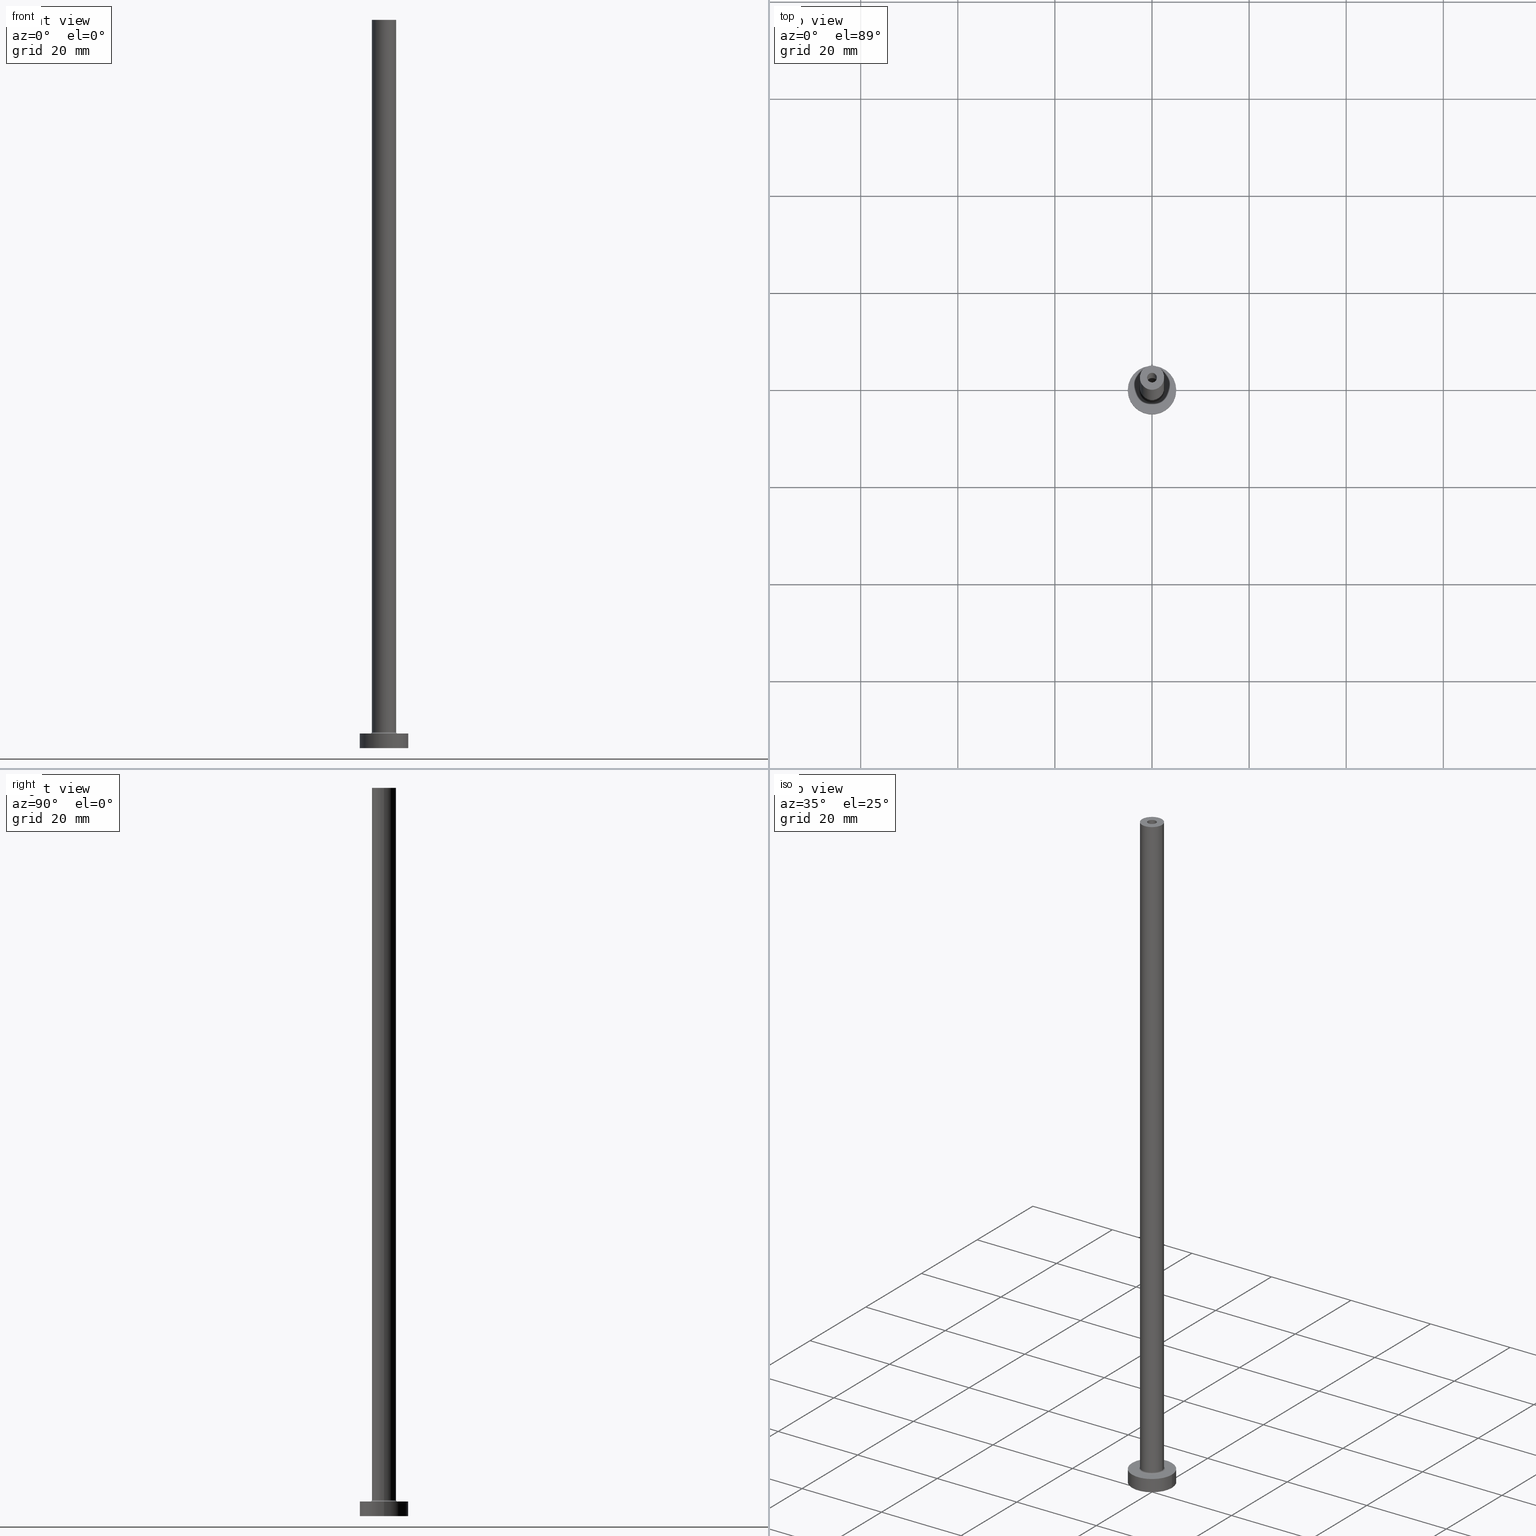
[diagram: canonical four-view strip — front | top / right | iso, engineering-drawing reading convention]
A machine part, canonical four-view strip (front | top / right | iso — engineering-drawing reading convention). The complete STEP part file that produces these views, byte-faithful:
ISO-10303-21;
HEADER;
FILE_DESCRIPTION (( 'STEP AP203' ),
    '1' );
FILE_NAME ('f4f7.STEP',
    '2023-02-13T18:14:59',
    ( '' ),
    ( '' ),
    'SwSTEP 2.0',
    'SolidWorks 2019',
    '' );
FILE_SCHEMA (( 'CONFIG_CONTROL_DESIGN' ));
ENDSEC;

DATA;
#1 = CARTESIAN_POINT ( 'NONE',  ( 1.000000000000000000, 1.224646799147353207E-16, 150.0000000000000000 ) ) ;
#2 = VERTEX_POINT ( 'NONE', #440 ) ;
#3 = DIRECTION ( 'NONE',  ( 0.000000000000000000, -1.000000000000000000, 0.000000000000000000 ) ) ;
#4 = EDGE_LOOP ( 'NONE', ( #427, #264, #370, #221 ) ) ;
#5 = CIRCLE ( 'NONE', #352, 2.799999999999999822 ) ;
#6 = PERSON ( 'NEUR�EN�', 'NEUR�EN�', 'NEUR�EN�', ('NEUR�EN�'), ('NEUR�EN�'), ('NEUR�EN�') ) ;
#7 = FACE_OUTER_BOUND ( 'NONE', #373, .T. ) ;
#8 = DIRECTION ( 'NONE',  ( 0.000000000000000000, 0.000000000000000000, 1.000000000000000000 ) ) ;
#9 = CARTESIAN_POINT ( 'NONE',  ( 2.500000000000000000, 3.061616997868383141E-16, 150.0000000000000000 ) ) ;
#10 = FACE_OUTER_BOUND ( 'NONE', #4, .T. ) ;
#11 = ORIENTED_EDGE ( 'NONE', *, *, #181, .F. ) ;
#12 = VECTOR ( 'NONE', #410, 1000.000000000000000 ) ;
#13 = DIRECTION ( 'NONE',  ( 0.000000000000000000, 0.000000000000000000, 1.000000000000000000 ) ) ;
#14 = VERTEX_POINT ( 'NONE', #436 ) ;
#15 = EDGE_CURVE ( 'NONE', #148, #45, #404, .T. ) ;
#16 = ORIENTED_EDGE ( 'NONE', *, *, #54, .F. ) ;
#17 = CARTESIAN_POINT ( 'NONE',  ( 0.000000000000000000, 0.000000000000000000, 0.000000000000000000 ) ) ;
#18 = LOCAL_TIME ( 19, 14, 59.00000000000000000, #368 ) ;
#19 = DIRECTION ( 'NONE',  ( 1.000000000000000000, 0.000000000000000000, 0.000000000000000000 ) ) ;
#20 = DATE_AND_TIME ( #238, #207 ) ;
#21 = CARTESIAN_POINT ( 'NONE',  ( 0.000000000000000000, 0.000000000000000000, 3.000000000000000000 ) ) ;
#22 = ADVANCED_FACE ( 'NONE', ( #80 ), #41, .F. ) ;
#23 = CARTESIAN_POINT ( 'NONE',  ( 0.000000000000000000, 0.000000000000000000, 3.299999999999997158 ) ) ;
#24 = ADVANCED_FACE ( 'NONE', ( #338 ), #330, .T. ) ;
#25 = ADVANCED_FACE ( 'NONE', ( #7 ), #162, .T. ) ;
#26 = CARTESIAN_POINT ( 'NONE',  ( 5.000000000000000000, 6.123233995736766282E-16, 3.000000000000000000 ) ) ;
#27 = AXIS2_PLACEMENT_3D ( 'NONE', #17, #125, #275 ) ;
#28 = DIRECTION ( 'NONE',  ( 0.000000000000000000, 0.000000000000000000, 1.000000000000000000 ) ) ;
#29 = EDGE_LOOP ( 'NONE', ( #16, #354 ) ) ;
#30 = PRODUCT_DEFINITION_SHAPE ( 'NONE', 'NONE',  #260 ) ;
#31 = CARTESIAN_POINT ( 'NONE',  ( -2.500000000000000000, 0.000000000000000000, 150.0000000000000000 ) ) ;
#32 = ORIENTED_EDGE ( 'NONE', *, *, #278, .F. ) ;
#33 = CARTESIAN_POINT ( 'NONE',  ( 1.000000000000000000, 1.224646799147353207E-16, 150.0000000000000000 ) ) ;
#34 = VECTOR ( 'NONE', #222, 1000.000000000000000 ) ;
#35 = APPLICATION_CONTEXT ( 'configuration controlled 3d designs of mechanical parts and assemblies' ) ;
#36 = CC_DESIGN_PERSON_AND_ORGANIZATION_ASSIGNMENT ( #89, #347, ( #200 ) ) ;
#37 = LINE ( 'NONE', #182, #149 ) ;
#38 = CARTESIAN_POINT ( 'NONE',  ( 0.000000000000000000, 0.000000000000000000, 114.9999999999999858 ) ) ;
#39 = VERTEX_POINT ( 'NONE', #387 ) ;
#40 = EDGE_CURVE ( 'NONE', #49, #2, #445, .T. ) ;
#41 = CYLINDRICAL_SURFACE ( 'NONE', #377, 1.000000000000000000 ) ;
#42 = AXIS2_PLACEMENT_3D ( 'NONE', #134, #281, #419 ) ;
#43 = CLOSED_SHELL ( 'NONE', ( #22, #128, #203, #24, #423, #91, #79, #154, #25, #251, #189, #384, #119, #216 ) ) ;
#44 = CARTESIAN_POINT ( 'NONE',  ( 2.799999999999999822, 0.000000000000000000, 3.299999999999997158 ) ) ;
#45 = VERTEX_POINT ( 'NONE', #206 ) ;
#46 = CARTESIAN_POINT ( 'NONE',  ( 0.000000000000000000, 0.000000000000000000, 150.0000000000000000 ) ) ;
#47 = ORIENTED_EDGE ( 'NONE', *, *, #237, .F. ) ;
#48 = CYLINDRICAL_SURFACE ( 'NONE', #234, 5.000000000000000000 ) ;
#49 = VERTEX_POINT ( 'NONE', #95 ) ;
#50 = CIRCLE ( 'NONE', #315, 0.2999999999999999334 ) ;
#51 = DIRECTION ( 'NONE',  ( -0.000000000000000000, -0.000000000000000000, -1.000000000000000000 ) ) ;
#52 = PLANE ( 'NONE',  #172 ) ;
#53 = APPROVAL_STATUS ( 'not_yet_approved' ) ;
#54 = EDGE_CURVE ( 'NONE', #339, #258, #58, .T. ) ;
#55 = DATE_AND_TIME ( #448, #344 ) ;
#56 = CC_DESIGN_APPROVAL ( #449, ( #200 ) ) ;
#57 = DIRECTION ( 'NONE',  ( 0.000000000000000000, 0.000000000000000000, 1.000000000000000000 ) ) ;
#58 = CIRCLE ( 'NONE', #306, 1.000000000000000000 ) ;
#59 = CC_DESIGN_DATE_AND_TIME_ASSIGNMENT ( #55, #441, ( #260 ) ) ;
#60 = PLANE ( 'NONE',  #139 ) ;
#61 = FACE_OUTER_BOUND ( 'NONE', #291, .T. ) ;
#62 = CC_DESIGN_PERSON_AND_ORGANIZATION_ASSIGNMENT ( #274, #340, ( #200 ) ) ;
#63 = AXIS2_PLACEMENT_3D ( 'NONE', #99, #357, #247 ) ;
#64 = DIRECTION ( 'NONE',  ( 1.000000000000000000, 0.000000000000000000, 0.000000000000000000 ) ) ;
#65 = EDGE_LOOP ( 'NONE', ( #174, #288 ) ) ;
#66 = DIRECTION ( 'NONE',  ( 1.224646799147353207E-16, 1.000000000000000000, -0.000000000000000000 ) ) ;
#67 = ORIENTED_EDGE ( 'NONE', *, *, #235, .F. ) ;
#68 = CARTESIAN_POINT ( 'NONE',  ( -1.000000000000000000, 0.000000000000000000, 150.0000000000000000 ) ) ;
#69 = CARTESIAN_POINT ( 'NONE',  ( 0.000000000000000000, 0.000000000000000000, 150.0000000000000000 ) ) ;
#70 = ORIENTED_EDGE ( 'NONE', *, *, #459, .T. ) ;
#71 = PLANE ( 'NONE',  #194 ) ;
#72 = APPROVAL_STATUS ( 'not_yet_approved' ) ;
#73 = EDGE_LOOP ( 'NONE', ( #47, #228, #121, #358 ) ) ;
#74 = DIRECTION ( 'NONE',  ( 1.000000000000000000, 0.000000000000000000, 0.000000000000000000 ) ) ;
#75 = VERTEX_POINT ( 'NONE', #314 ) ;
#76 = AXIS2_PLACEMENT_3D ( 'NONE', #144, #66, #426 ) ;
#77 = AXIS2_PLACEMENT_3D ( 'NONE', #171, #199, #243 ) ;
#78 =( NAMED_UNIT ( * ) PLANE_ANGLE_UNIT ( ) SI_UNIT ( $, .RADIAN. ) );
#79 = ADVANCED_FACE ( 'NONE', ( #127, #450 ), #52, .T. ) ;
#80 = FACE_OUTER_BOUND ( 'NONE', #422, .T. ) ;
#81 = CARTESIAN_POINT ( 'NONE',  ( 0.000000000000000000, 0.000000000000000000, 0.000000000000000000 ) ) ;
#82 = ORIENTED_EDGE ( 'NONE', *, *, #177, .F. ) ;
#83 = DIRECTION ( 'NONE',  ( 0.000000000000000000, 0.000000000000000000, -1.000000000000000000 ) ) ;
#84 = ORIENTED_EDGE ( 'NONE', *, *, #229, .F. ) ;
#85 = AXIS2_PLACEMENT_3D ( 'NONE', #179, #102, #64 ) ;
#86 = LOCAL_TIME ( 19, 14, 59.00000000000000000, #165 ) ;
#87 = APPROVAL_ROLE ( '' ) ;
#88 = CYLINDRICAL_SURFACE ( 'NONE', #169, 1.149999999999999911 ) ;
#89 = PERSON_AND_ORGANIZATION ( #6, #420 ) ;
#90 = FACE_BOUND ( 'NONE', #256, .T. ) ;
#91 = ADVANCED_FACE ( 'NONE', ( #61 ), #303, .T. ) ;
#92 = CARTESIAN_POINT ( 'NONE',  ( 0.000000000000000000, 0.000000000000000000, 150.0000000000000000 ) ) ;
#93 = APPROVAL_STATUS ( 'not_yet_approved' ) ;
#94 = AXIS2_PLACEMENT_3D ( 'NONE', #110, #372, #403 ) ;
#95 = CARTESIAN_POINT ( 'NONE',  ( -1.000000000000000000, 0.000000000000000000, 114.9999999999999858 ) ) ;
#96 = DIRECTION ( 'NONE',  ( -1.000000000000000000, 0.000000000000000000, 0.000000000000000000 ) ) ;
#97 = CARTESIAN_POINT ( 'NONE',  ( 2.799999999999999822, 0.000000000000000000, 2.999999999999998668 ) ) ;
#98 = AXIS2_PLACEMENT_3D ( 'NONE', #192, #366, #255 ) ;
#99 = CARTESIAN_POINT ( 'NONE',  ( 0.000000000000000000, 0.000000000000000000, 114.9999999999999858 ) ) ;
#100 = CIRCLE ( 'NONE', #323, 2.500000000000000000 ) ;
#101 = EDGE_CURVE ( 'NONE', #148, #180, #100, .T. ) ;
#102 = DIRECTION ( 'NONE',  ( 0.000000000000000000, 0.000000000000000000, 1.000000000000000000 ) ) ;
#103 = APPROVAL ( #93, 'NEUR�EN�' ) ;
#104 = EDGE_LOOP ( 'NONE', ( #145, #442 ) ) ;
#105 = DIRECTION ( 'NONE',  ( -0.000000000000000000, -0.000000000000000000, -1.000000000000000000 ) ) ;
#106 = ORIENTED_EDGE ( 'NONE', *, *, #141, .F. ) ;
#107 = DIRECTION ( 'NONE',  ( -0.000000000000000000, -0.000000000000000000, -1.000000000000000000 ) ) ;
#108 = VERTEX_POINT ( 'NONE', #382 ) ;
#109 = AXIS2_PLACEMENT_3D ( 'NONE', #142, #173, #318 ) ;
#110 = CARTESIAN_POINT ( 'NONE',  ( 0.000000000000000000, 0.000000000000000000, 118.2526911934581051 ) ) ;
#111 = ORIENTED_EDGE ( 'NONE', *, *, #150, .F. ) ;
#112 = PERSON_AND_ORGANIZATION ( #6, #420 ) ;
#113 = EDGE_LOOP ( 'NONE', ( #335, #123, #70, #396 ) ) ;
#114 = ORIENTED_EDGE ( 'NONE', *, *, #237, .T. ) ;
#115 = TOROIDAL_SURFACE ( 'NONE', #131, 2.799999999999999822, 0.2999999999999999889 ) ;
#116 = CC_DESIGN_SECURITY_CLASSIFICATION ( #138, ( #200 ) ) ;
#117 = LINE ( 'NONE', #435, #34 ) ;
#118 = VERTEX_POINT ( 'NONE', #132 ) ;
#119 = ADVANCED_FACE ( 'NONE', ( #90, #346 ), #60, .F. ) ;
#120 = APPLICATION_PROTOCOL_DEFINITION ( 'international standard', 'config_control_design', 1994, #35 ) ;
#121 = ORIENTED_EDGE ( 'NONE', *, *, #150, .T. ) ;
#122 = COORDINATED_UNIVERSAL_TIME_OFFSET ( 1, 0, .AHEAD. ) ;
#123 = ORIENTED_EDGE ( 'NONE', *, *, #15, .T. ) ;
#124 = AXIS2_PLACEMENT_3D ( 'NONE', #81, #8, #265 ) ;
#125 = DIRECTION ( 'NONE',  ( 0.000000000000000000, 0.000000000000000000, 1.000000000000000000 ) ) ;
#126 = PERSON_AND_ORGANIZATION ( #6, #420 ) ;
#127 = FACE_BOUND ( 'NONE', #104, .T. ) ;
#128 = ADVANCED_FACE ( 'NONE', ( #130 ), #88, .F. ) ;
#129 = PERSON_AND_ORGANIZATION ( #6, #420 ) ;
#130 = FACE_OUTER_BOUND ( 'NONE', #215, .T. ) ;
#131 = AXIS2_PLACEMENT_3D ( 'NONE', #220, #28, #364 ) ;
#132 = CARTESIAN_POINT ( 'NONE',  ( -2.799999999999999822, 3.429011037612589276E-16, 2.999999999999998668 ) ) ;
#133 = DIRECTION ( 'NONE',  ( 1.000000000000000000, 0.000000000000000000, 0.000000000000000000 ) ) ;
#134 = CARTESIAN_POINT ( 'NONE',  ( 0.000000000000000000, 0.000000000000000000, 3.000000000000000000 ) ) ;
#135 = ORIENTED_EDGE ( 'NONE', *, *, #177, .T. ) ;
#136 = AXIS2_PLACEMENT_3D ( 'NONE', #292, #259, #74 ) ;
#137 = DIRECTION ( 'NONE',  ( 0.000000000000000000, 0.000000000000000000, -1.000000000000000000 ) ) ;
#138 = SECURITY_CLASSIFICATION ( '', '', #413 ) ;
#139 = AXIS2_PLACEMENT_3D ( 'NONE', #447, #166, #236 ) ;
#140 = ORIENTED_EDGE ( 'NONE', *, *, #280, .T. ) ;
#141 = EDGE_CURVE ( 'NONE', #108, #14, #458, .T. ) ;
#142 = CARTESIAN_POINT ( 'NONE',  ( 0.000000000000000000, 0.000000000000000000, 114.9999999999999858 ) ) ;
#143 = DESIGN_CONTEXT ( 'detailed design', #35, 'design' ) ;
#144 = CARTESIAN_POINT ( 'NONE',  ( -2.799999999999999822, 3.429011037612588783E-16, 3.299999999999997158 ) ) ;
#145 = ORIENTED_EDGE ( 'NONE', *, *, #229, .T. ) ;
#146 =( NAMED_UNIT ( * ) SI_UNIT ( $, .STERADIAN. ) SOLID_ANGLE_UNIT ( ) );
#147 = CIRCLE ( 'NONE', #63, 1.000000000000000000 ) ;
#148 = VERTEX_POINT ( 'NONE', #311 ) ;
#149 = VECTOR ( 'NONE', #287, 1000.000000000000000 ) ;
#150 = EDGE_CURVE ( 'NONE', #223, #262, #289, .T. ) ;
#151 = DIRECTION ( 'NONE',  ( 0.000000000000000000, 0.000000000000000000, -1.000000000000000000 ) ) ;
#152 = ORIENTED_EDGE ( 'NONE', *, *, #309, .F. ) ;
#153 = ORIENTED_EDGE ( 'NONE', *, *, #270, .F. ) ;
#154 = ADVANCED_FACE ( 'NONE', ( #444, #277 ), #197, .F. ) ;
#155 = ORIENTED_EDGE ( 'NONE', *, *, #101, .T. ) ;
#156 = VECTOR ( 'NONE', #246, 1000.000000000000000 ) ;
#157 = CC_DESIGN_APPROVAL ( #103, ( #138 ) ) ;
#158 = CARTESIAN_POINT ( 'NONE',  ( -2.500000000000000000, 0.000000000000000000, 3.299999999999997158 ) ) ;
#159 = ORIENTED_EDGE ( 'NONE', *, *, #369, .T. ) ;
#160 = ORIENTED_EDGE ( 'NONE', *, *, #381, .T. ) ;
#161 = APPROVAL_DATE_TIME ( #310, #286 ) ;
#162 = CYLINDRICAL_SURFACE ( 'NONE', #77, 2.500000000000000000 ) ;
#163 = AXIS2_PLACEMENT_3D ( 'NONE', #417, #412, #414 ) ;
#164 = DIRECTION ( 'NONE',  ( -0.000000000000000000, -0.000000000000000000, -1.000000000000000000 ) ) ;
#165 = COORDINATED_UNIVERSAL_TIME_OFFSET ( 1, 0, .AHEAD. ) ;
#166 = DIRECTION ( 'NONE',  ( 0.000000000000000000, 0.000000000000000000, 1.000000000000000000 ) ) ;
#167 = DATE_AND_TIME ( #301, #269 ) ;
#168 = DIRECTION ( 'NONE',  ( 0.000000000000000000, 0.000000000000000000, 1.000000000000000000 ) ) ;
#169 = AXIS2_PLACEMENT_3D ( 'NONE', #385, #205, #96 ) ;
#170 = CIRCLE ( 'NONE', #359, 2.500000000000000000 ) ;
#171 = CARTESIAN_POINT ( 'NONE',  ( 0.000000000000000000, 0.000000000000000000, 150.0000000000000000 ) ) ;
#172 = AXIS2_PLACEMENT_3D ( 'NONE', #21, #168, #241 ) ;
#173 = DIRECTION ( 'NONE',  ( 0.000000000000000000, 0.000000000000000000, 1.000000000000000000 ) ) ;
#174 = ORIENTED_EDGE ( 'NONE', *, *, #321, .F. ) ;
#175 = DIRECTION ( 'NONE',  ( 1.000000000000000000, 0.000000000000000000, 0.000000000000000000 ) ) ;
#176 = EDGE_LOOP ( 'NONE', ( #211, #67 ) ) ;
#177 = EDGE_CURVE ( 'NONE', #367, #45, #337, .T. ) ;
#178 = VECTOR ( 'NONE', #151, 1000.000000000000000 ) ;
#179 = CARTESIAN_POINT ( 'NONE',  ( 0.000000000000000000, 0.000000000000000000, 3.299999999999997158 ) ) ;
#180 = VERTEX_POINT ( 'NONE', #341 ) ;
#181 = EDGE_CURVE ( 'NONE', #14, #223, #350, .T. ) ;
#182 = CARTESIAN_POINT ( 'NONE',  ( -5.000000000000000000, 0.000000000000000000, 3.000000000000000000 ) ) ;
#183 = CARTESIAN_POINT ( 'NONE',  ( 0.000000000000000000, 0.000000000000000000, 3.000000000000000000 ) ) ;
#184 = ORIENTED_EDGE ( 'NONE', *, *, #40, .F. ) ;
#185 = ORIENTED_EDGE ( 'NONE', *, *, #397, .T. ) ;
#186 = AXIS2_PLACEMENT_3D ( 'NONE', #376, #51, #195 ) ;
#187 = DIRECTION ( 'NONE',  ( -1.000000000000000000, 0.000000000000000000, 0.000000000000000000 ) ) ;
#188 = ORIENTED_EDGE ( 'NONE', *, *, #434, .T. ) ;
#189 = ADVANCED_FACE ( 'NONE', ( #239 ), #115, .F. ) ;
#190 = CC_DESIGN_PERSON_AND_ORGANIZATION_ASSIGNMENT ( #342, #307, ( #138 ) ) ;
#191 = ORIENTED_EDGE ( 'NONE', *, *, #305, .T. ) ;
#192 = CARTESIAN_POINT ( 'NONE',  ( 0.000000000000000000, 0.000000000000000000, 3.299999999999997158 ) ) ;
#193 = DIRECTION ( 'NONE',  ( -1.000000000000000000, 0.000000000000000000, 0.000000000000000000 ) ) ;
#194 = AXIS2_PLACEMENT_3D ( 'NONE', #69, #418, #361 ) ;
#195 = DIRECTION ( 'NONE',  ( -1.000000000000000000, 0.000000000000000000, 0.000000000000000000 ) ) ;
#196 = SHAPE_DEFINITION_REPRESENTATION ( #30, #446 ) ;
#197 = PLANE ( 'NONE',  #163 ) ;
#198 = APPROVAL_ROLE ( '' ) ;
#199 = DIRECTION ( 'NONE',  ( -0.000000000000000000, -0.000000000000000000, -1.000000000000000000 ) ) ;
#200 = PRODUCT_DEFINITION_FORMATION_WITH_SPECIFIED_SOURCE ( 'LIBOVOLN�', '', #360, .NOT_KNOWN. ) ;
#201 = APPROVAL_DATE_TIME ( #242, #103 ) ;
#202 = DIRECTION ( 'NONE',  ( 0.000000000000000000, 0.000000000000000000, 1.000000000000000000 ) ) ;
#203 = ADVANCED_FACE ( 'NONE', ( #343 ), #400, .F. ) ;
#204 = PERSON_AND_ORGANIZATION_ROLE ( 'creator' ) ;
#205 = DIRECTION ( 'NONE',  ( 0.000000000000000000, 0.000000000000000000, -1.000000000000000000 ) ) ;
#206 = CARTESIAN_POINT ( 'NONE',  ( 2.500000000000000000, 3.061616997868383141E-16, 3.299999999999997158 ) ) ;
#207 = LOCAL_TIME ( 19, 14, 59.00000000000000000, #380 ) ;
#208 = DIRECTION ( 'NONE',  ( 1.000000000000000000, 0.000000000000000000, 0.000000000000000000 ) ) ;
#209 = EDGE_LOOP ( 'NONE', ( #439, #114 ) ) ;
#210 = CARTESIAN_POINT ( 'NONE',  ( 0.000000000000000000, 0.000000000000000000, 0.000000000000000000 ) ) ;
#211 = ORIENTED_EDGE ( 'NONE', *, *, #245, .F. ) ;
#212 = CC_DESIGN_PERSON_AND_ORGANIZATION_ASSIGNMENT ( #272, #204, ( #260 ) ) ;
#213 = LINE ( 'NONE', #31, #322 ) ;
#214 = EDGE_CURVE ( 'NONE', #108, #262, #37, .T. ) ;
#215 = EDGE_LOOP ( 'NONE', ( #284, #188, #140, #302 ) ) ;
#216 = ADVANCED_FACE ( 'NONE', ( #324 ), #395, .F. ) ;
#217 = CIRCLE ( 'NONE', #76, 0.2999999999999999334 ) ;
#218 = DIRECTION ( 'NONE',  ( 0.000000000000000000, 0.000000000000000000, 1.000000000000000000 ) ) ;
#219 = VECTOR ( 'NONE', #266, 1000.000000000000000 ) ;
#220 = CARTESIAN_POINT ( 'NONE',  ( 0.000000000000000000, 0.000000000000000000, 3.299999999999997158 ) ) ;
#221 = ORIENTED_EDGE ( 'NONE', *, *, #321, .T. ) ;
#222 = DIRECTION ( 'NONE',  ( 0.000000000000000000, 0.000000000000000000, -1.000000000000000000 ) ) ;
#223 = VERTEX_POINT ( 'NONE', #326 ) ;
#224 = APPLICATION_CONTEXT ( 'configuration controlled 3d designs of mechanical parts and assemblies' ) ;
#225 = APPROVAL_ROLE ( '' ) ;
#226 = APPROVAL_PERSON_ORGANIZATION ( #257, #286, #225 ) ;
#227 = ORIENTED_EDGE ( 'NONE', *, *, #317, .T. ) ;
#228 = ORIENTED_EDGE ( 'NONE', *, *, #181, .T. ) ;
#229 = EDGE_CURVE ( 'NONE', #254, #118, #5, .T. ) ;
#230 = CARTESIAN_POINT ( 'NONE',  ( 0.000000000000000000, 0.000000000000000000, 3.000000000000000000 ) ) ;
#231 = DIRECTION ( 'NONE',  ( 0.000000000000000000, 0.000000000000000000, -1.000000000000000000 ) ) ;
#232 = CARTESIAN_POINT ( 'NONE',  ( 0.000000000000000000, 0.000000000000000000, 150.0000000000000000 ) ) ;
#233 = CARTESIAN_POINT ( 'NONE',  ( 0.000000000000000000, 0.000000000000000000, 150.0000000000000000 ) ) ;
#234 = AXIS2_PLACEMENT_3D ( 'NONE', #230, #299, #187 ) ;
#235 = EDGE_CURVE ( 'NONE', #39, #320, #437, .T. ) ;
#236 = DIRECTION ( 'NONE',  ( 1.000000000000000000, 0.000000000000000000, -0.000000000000000000 ) ) ;
#237 = EDGE_CURVE ( 'NONE', #14, #108, #268, .T. ) ;
#238 = CALENDAR_DATE ( 2023, 13, 2 ) ;
#239 = FACE_OUTER_BOUND ( 'NONE', #356, .T. ) ;
#240 = DATE_TIME_ROLE ( 'classification_date' ) ;
#241 = DIRECTION ( 'NONE',  ( 1.000000000000000000, 0.000000000000000000, -0.000000000000000000 ) ) ;
#242 = DATE_AND_TIME ( #313, #86 ) ;
#243 = DIRECTION ( 'NONE',  ( -1.000000000000000000, 0.000000000000000000, 0.000000000000000000 ) ) ;
#244 = DIRECTION ( 'NONE',  ( 0.000000000000000000, 0.000000000000000000, 1.000000000000000000 ) ) ;
#245 = EDGE_CURVE ( 'NONE', #320, #39, #389, .T. ) ;
#246 = DIRECTION ( 'NONE',  ( 0.000000000000000000, 0.000000000000000000, -1.000000000000000000 ) ) ;
#247 = DIRECTION ( 'NONE',  ( 1.000000000000000000, 0.000000000000000000, 0.000000000000000000 ) ) ;
#248 = CARTESIAN_POINT ( 'NONE',  ( 0.000000000000000000, 0.000000000000000000, 150.0000000000000000 ) ) ;
#249 = ORIENTED_EDGE ( 'NONE', *, *, #381, .F. ) ;
#250 = FACE_BOUND ( 'NONE', #29, .T. ) ;
#251 = ADVANCED_FACE ( 'NONE', ( #250, #279 ), #71, .T. ) ;
#252 = CIRCLE ( 'NONE', #276, 1.149999999999999911 ) ;
#253 = DIRECTION ( 'NONE',  ( -1.000000000000000000, 0.000000000000000000, 0.000000000000000000 ) ) ;
#254 = VERTEX_POINT ( 'NONE', #97 ) ;
#255 = DIRECTION ( 'NONE',  ( 1.000000000000000000, 0.000000000000000000, 0.000000000000000000 ) ) ;
#256 = EDGE_LOOP ( 'NONE', ( #461, #227 ) ) ;
#257 = PERSON_AND_ORGANIZATION ( #6, #420 ) ;
#258 = VERTEX_POINT ( 'NONE', #1 ) ;
#259 = DIRECTION ( 'NONE',  ( 0.000000000000000000, 0.000000000000000000, 1.000000000000000000 ) ) ;
#260 = PRODUCT_DEFINITION ( 'NEZN�M�', '', #200, #143 ) ;
#261 = CIRCLE ( 'NONE', #429, 1.000000000000000000 ) ;
#262 = VERTEX_POINT ( 'NONE', #456 ) ;
#263 = CYLINDRICAL_SURFACE ( 'NONE', #94, 1.149999999999999911 ) ;
#264 = ORIENTED_EDGE ( 'NONE', *, *, #235, .T. ) ;
#265 = DIRECTION ( 'NONE',  ( 1.000000000000000000, 0.000000000000000000, 0.000000000000000000 ) ) ;
#266 = DIRECTION ( 'NONE',  ( -0.000000000000000000, -0.000000000000000000, -1.000000000000000000 ) ) ;
#267 = DIRECTION ( 'NONE',  ( 1.000000000000000000, 0.000000000000000000, 0.000000000000000000 ) ) ;
#268 = CIRCLE ( 'NONE', #375, 5.000000000000000000 ) ;
#269 = LOCAL_TIME ( 19, 14, 59.00000000000000000, #122 ) ;
#270 = EDGE_CURVE ( 'NONE', #258, #2, #285, .T. ) ;
#271 = DIRECTION ( 'NONE',  ( 1.000000000000000000, 0.000000000000000000, 0.000000000000000000 ) ) ;
#272 = PERSON_AND_ORGANIZATION ( #6, #420 ) ;
#273 = DIRECTION ( 'NONE',  ( 1.000000000000000000, 0.000000000000000000, 0.000000000000000000 ) ) ;
#274 = PERSON_AND_ORGANIZATION ( #6, #420 ) ;
#275 = DIRECTION ( 'NONE',  ( 1.000000000000000000, 0.000000000000000000, 0.000000000000000000 ) ) ;
#276 = AXIS2_PLACEMENT_3D ( 'NONE', #210, #355, #175 ) ;
#277 = FACE_OUTER_BOUND ( 'NONE', #431, .T. ) ;
#278 = EDGE_CURVE ( 'NONE', #367, #118, #217, .T. ) ;
#279 = FACE_OUTER_BOUND ( 'NONE', #295, .T. ) ;
#280 = EDGE_CURVE ( 'NONE', #75, #293, #452, .T. ) ;
#281 = DIRECTION ( 'NONE',  ( -0.000000000000000000, -0.000000000000000000, -1.000000000000000000 ) ) ;
#282 = CC_DESIGN_APPROVAL ( #286, ( #260 ) ) ;
#283 = CARTESIAN_POINT ( 'NONE',  ( -1.149999999999999911, 0.000000000000000000, 118.2526911934581051 ) ) ;
#284 = ORIENTED_EDGE ( 'NONE', *, *, #245, .T. ) ;
#285 = LINE ( 'NONE', #33, #156 ) ;
#286 = APPROVAL ( #72, 'NEUR�EN�' ) ;
#287 = DIRECTION ( 'NONE',  ( -0.000000000000000000, -0.000000000000000000, -1.000000000000000000 ) ) ;
#288 = ORIENTED_EDGE ( 'NONE', *, *, #280, .F. ) ;
#289 = CIRCLE ( 'NONE', #27, 5.000000000000000000 ) ;
#290 = CIRCLE ( 'NONE', #98, 2.500000000000000000 ) ;
#291 = EDGE_LOOP ( 'NONE', ( #11, #106, #363, #185 ) ) ;
#292 = CARTESIAN_POINT ( 'NONE',  ( 0.000000000000000000, 0.000000000000000000, 0.000000000000000000 ) ) ;
#293 = VERTEX_POINT ( 'NONE', #353 ) ;
#294 = DIRECTION ( 'NONE',  ( 1.000000000000000000, 0.000000000000000000, 0.000000000000000000 ) ) ;
#295 = EDGE_LOOP ( 'NONE', ( #371, #155 ) ) ;
#296 = PERSON_AND_ORGANIZATION_ROLE ( 'design_owner' ) ;
#297 = AXIS2_PLACEMENT_3D ( 'NONE', #23, #244, #271 ) ;
#298 = ORIENTED_EDGE ( 'NONE', *, *, #369, .F. ) ;
#299 = DIRECTION ( 'NONE',  ( -0.000000000000000000, -0.000000000000000000, -1.000000000000000000 ) ) ;
#300 = ORIENTED_EDGE ( 'NONE', *, *, #278, .T. ) ;
#301 = CALENDAR_DATE ( 2023, 13, 2 ) ;
#302 = ORIENTED_EDGE ( 'NONE', *, *, #328, .F. ) ;
#303 = CYLINDRICAL_SURFACE ( 'NONE', #345, 5.000000000000000000 ) ;
#304 =( GEOMETRIC_REPRESENTATION_CONTEXT ( 3 ) GLOBAL_UNCERTAINTY_ASSIGNED_CONTEXT ( ( #362 ) ) GLOBAL_UNIT_ASSIGNED_CONTEXT ( ( #398, #78, #146 ) ) REPRESENTATION_CONTEXT ( 'NONE', 'WORKASPACE' ) );
#305 = EDGE_CURVE ( 'NONE', #180, #367, #213, .T. ) ;
#306 = AXIS2_PLACEMENT_3D ( 'NONE', #92, #202, #267 ) ;
#307 = PERSON_AND_ORGANIZATION_ROLE ( 'classification_officer' ) ;
#308 = CARTESIAN_POINT ( 'NONE',  ( 0.000000000000000000, 0.000000000000000000, 150.0000000000000000 ) ) ;
#309 = EDGE_CURVE ( 'NONE', #118, #254, #351, .T. ) ;
#310 = DATE_AND_TIME ( #438, #18 ) ;
#311 = CARTESIAN_POINT ( 'NONE',  ( 2.500000000000000000, 3.061616997868383141E-16, 150.0000000000000000 ) ) ;
#312 = MANIFOLD_SOLID_BREP ( 'Odebrat vysunut�m4', #43 ) ;
#313 = CALENDAR_DATE ( 2023, 13, 2 ) ;
#314 = CARTESIAN_POINT ( 'NONE',  ( 1.149999999999999911, 1.408343819019456028E-16, 0.000000000000000000 ) ) ;
#315 = AXIS2_PLACEMENT_3D ( 'NONE', #44, #3, #83 ) ;
#316 = CARTESIAN_POINT ( 'NONE',  ( 0.000000000000000000, 0.000000000000000000, 114.9999999999999858 ) ) ;
#317 = EDGE_CURVE ( 'NONE', #2, #49, #147, .T. ) ;
#318 = DIRECTION ( 'NONE',  ( 1.000000000000000000, 0.000000000000000000, 0.000000000000000000 ) ) ;
#319 = LINE ( 'NONE', #283, #407 ) ;
#320 = VERTEX_POINT ( 'NONE', #390 ) ;
#321 = EDGE_CURVE ( 'NONE', #293, #75, #252, .T. ) ;
#322 = VECTOR ( 'NONE', #454, 1000.000000000000000 ) ;
#323 = AXIS2_PLACEMENT_3D ( 'NONE', #308, #451, #273 ) ;
#324 = FACE_OUTER_BOUND ( 'NONE', #327, .T. ) ;
#325 = ORIENTED_EDGE ( 'NONE', *, *, #459, .F. ) ;
#326 = CARTESIAN_POINT ( 'NONE',  ( 5.000000000000000000, 6.123233995736766282E-16, 0.000000000000000000 ) ) ;
#327 = EDGE_LOOP ( 'NONE', ( #153, #333, #159, #402 ) ) ;
#328 = EDGE_CURVE ( 'NONE', #320, #293, #319, .T. ) ;
#329 = CIRCLE ( 'NONE', #124, 5.000000000000000000 ) ;
#330 = CYLINDRICAL_SURFACE ( 'NONE', #186, 2.500000000000000000 ) ;
#331 = PRODUCT_RELATED_PRODUCT_CATEGORY ( 'detail', '', ( #360 ) ) ;
#332 = DIRECTION ( 'NONE',  ( 0.000000000000000000, 0.000000000000000000, 1.000000000000000000 ) ) ;
#333 = ORIENTED_EDGE ( 'NONE', *, *, #425, .T. ) ;
#334 = APPLICATION_PROTOCOL_DEFINITION ( 'international standard', 'config_control_design', 1994, #224 ) ;
#335 = ORIENTED_EDGE ( 'NONE', *, *, #101, .F. ) ;
#336 = CC_DESIGN_DATE_AND_TIME_ASSIGNMENT ( #20, #240, ( #138 ) ) ;
#337 = CIRCLE ( 'NONE', #297, 2.500000000000000000 ) ;
#338 = FACE_OUTER_BOUND ( 'NONE', #113, .T. ) ;
#339 = VERTEX_POINT ( 'NONE', #68 ) ;
#340 = PERSON_AND_ORGANIZATION_ROLE ( 'design_supplier' ) ;
#341 = CARTESIAN_POINT ( 'NONE',  ( -2.500000000000000000, 0.000000000000000000, 150.0000000000000000 ) ) ;
#342 = PERSON_AND_ORGANIZATION ( #6, #420 ) ;
#343 = FACE_OUTER_BOUND ( 'NONE', #399, .T. ) ;
#344 = LOCAL_TIME ( 19, 14, 59.00000000000000000, #411 ) ;
#345 = AXIS2_PLACEMENT_3D ( 'NONE', #379, #164, #408 ) ;
#346 = FACE_OUTER_BOUND ( 'NONE', #176, .T. ) ;
#347 = PERSON_AND_ORGANIZATION_ROLE ( 'creator' ) ;
#348 = CARTESIAN_POINT ( 'NONE',  ( 0.000000000000000000, 0.000000000000000000, 3.000000000000000000 ) ) ;
#349 = EDGE_CURVE ( 'NONE', #180, #148, #170, .T. ) ;
#350 = LINE ( 'NONE', #26, #12 ) ;
#351 = CIRCLE ( 'NONE', #42, 2.799999999999999822 ) ;
#352 = AXIS2_PLACEMENT_3D ( 'NONE', #424, #105, #392 ) ;
#353 = CARTESIAN_POINT ( 'NONE',  ( -1.149999999999999911, 0.000000000000000000, 0.000000000000000000 ) ) ;
#354 = ORIENTED_EDGE ( 'NONE', *, *, #425, .F. ) ;
#355 = DIRECTION ( 'NONE',  ( -0.000000000000000000, -0.000000000000000000, -1.000000000000000000 ) ) ;
#356 = EDGE_LOOP ( 'NONE', ( #32, #325, #160, #152 ) ) ;
#357 = DIRECTION ( 'NONE',  ( 0.000000000000000000, 0.000000000000000000, 1.000000000000000000 ) ) ;
#358 = ORIENTED_EDGE ( 'NONE', *, *, #214, .F. ) ;
#359 = AXIS2_PLACEMENT_3D ( 'NONE', #232, #332, #294 ) ;
#360 = PRODUCT ( 'f4f7', 'f4f7', '', ( #432 ) ) ;
#361 = DIRECTION ( 'NONE',  ( 1.000000000000000000, 0.000000000000000000, -0.000000000000000000 ) ) ;
#362 = UNCERTAINTY_MEASURE_WITH_UNIT (LENGTH_MEASURE( 1.000000000000000082E-05 ), #398, 'distance_accuracy_value', 'NONE');
#363 = ORIENTED_EDGE ( 'NONE', *, *, #214, .T. ) ;
#364 = DIRECTION ( 'NONE',  ( 1.000000000000000000, 0.000000000000000000, 0.000000000000000000 ) ) ;
#365 = ORIENTED_EDGE ( 'NONE', *, *, #270, .T. ) ;
#366 = DIRECTION ( 'NONE',  ( 0.000000000000000000, 0.000000000000000000, 1.000000000000000000 ) ) ;
#367 = VERTEX_POINT ( 'NONE', #158 ) ;
#368 = COORDINATED_UNIVERSAL_TIME_OFFSET ( 1, 0, .AHEAD. ) ;
#369 = EDGE_CURVE ( 'NONE', #339, #49, #117, .T. ) ;
#370 = ORIENTED_EDGE ( 'NONE', *, *, #328, .T. ) ;
#371 = ORIENTED_EDGE ( 'NONE', *, *, #349, .T. ) ;
#372 = DIRECTION ( 'NONE',  ( 0.000000000000000000, 0.000000000000000000, -1.000000000000000000 ) ) ;
#373 = EDGE_LOOP ( 'NONE', ( #393, #455, #191, #135 ) ) ;
#374 = CARTESIAN_POINT ( 'NONE',  ( 1.149999999999999911, 1.408343819019456028E-16, 118.2526911934581051 ) ) ;
#375 = AXIS2_PLACEMENT_3D ( 'NONE', #183, #391, #133 ) ;
#376 = CARTESIAN_POINT ( 'NONE',  ( 0.000000000000000000, 0.000000000000000000, 150.0000000000000000 ) ) ;
#377 = AXIS2_PLACEMENT_3D ( 'NONE', #233, #231, #193 ) ;
#378 = DIRECTION ( 'NONE',  ( 0.000000000000000000, 0.000000000000000000, 1.000000000000000000 ) ) ;
#379 = CARTESIAN_POINT ( 'NONE',  ( 0.000000000000000000, 0.000000000000000000, 3.000000000000000000 ) ) ;
#380 = COORDINATED_UNIVERSAL_TIME_OFFSET ( 1, 0, .AHEAD. ) ;
#381 = EDGE_CURVE ( 'NONE', #45, #254, #50, .T. ) ;
#382 = CARTESIAN_POINT ( 'NONE',  ( -5.000000000000000000, 0.000000000000000000, 3.000000000000000000 ) ) ;
#383 = AXIS2_PLACEMENT_3D ( 'NONE', #388, #107, #208 ) ;
#384 = ADVANCED_FACE ( 'NONE', ( #10 ), #263, .F. ) ;
#385 = CARTESIAN_POINT ( 'NONE',  ( 0.000000000000000000, 0.000000000000000000, 118.2526911934581051 ) ) ;
#386 = APPROVAL_DATE_TIME ( #167, #449 ) ;
#387 = CARTESIAN_POINT ( 'NONE',  ( 1.149999999999999911, 1.408343819019456028E-16, 114.9999999999999858 ) ) ;
#388 = CARTESIAN_POINT ( 'NONE',  ( 0.000000000000000000, 0.000000000000000000, 0.000000000000000000 ) ) ;
#389 = CIRCLE ( 'NONE', #415, 1.149999999999999911 ) ;
#390 = CARTESIAN_POINT ( 'NONE',  ( -1.149999999999999911, 0.000000000000000000, 114.9999999999999858 ) ) ;
#391 = DIRECTION ( 'NONE',  ( 0.000000000000000000, 0.000000000000000000, 1.000000000000000000 ) ) ;
#392 = DIRECTION ( 'NONE',  ( 1.000000000000000000, 0.000000000000000000, 0.000000000000000000 ) ) ;
#393 = ORIENTED_EDGE ( 'NONE', *, *, #15, .F. ) ;
#394 = AXIS2_PLACEMENT_3D ( 'NONE', #248, #137, #253 ) ;
#395 = CYLINDRICAL_SURFACE ( 'NONE', #394, 1.000000000000000000 ) ;
#396 = ORIENTED_EDGE ( 'NONE', *, *, #305, .F. ) ;
#397 = EDGE_CURVE ( 'NONE', #262, #223, #329, .T. ) ;
#398 =( LENGTH_UNIT ( ) NAMED_UNIT ( * ) SI_UNIT ( .MILLI., .METRE. ) );
#399 = EDGE_LOOP ( 'NONE', ( #82, #300, #84, #249 ) ) ;
#400 = TOROIDAL_SURFACE ( 'NONE', #85, 2.799999999999999822, 0.2999999999999999889 ) ;
#401 = DIRECTION ( 'NONE',  ( 1.000000000000000000, 0.000000000000000000, 0.000000000000000000 ) ) ;
#402 = ORIENTED_EDGE ( 'NONE', *, *, #317, .F. ) ;
#403 = DIRECTION ( 'NONE',  ( -1.000000000000000000, 0.000000000000000000, 0.000000000000000000 ) ) ;
#404 = LINE ( 'NONE', #9, #219 ) ;
#405 = FACE_OUTER_BOUND ( 'NONE', #73, .T. ) ;
#406 = ORIENTED_EDGE ( 'NONE', *, *, #54, .T. ) ;
#407 = VECTOR ( 'NONE', #421, 1000.000000000000000 ) ;
#408 = DIRECTION ( 'NONE',  ( -1.000000000000000000, 0.000000000000000000, 0.000000000000000000 ) ) ;
#409 = AXIS2_PLACEMENT_3D ( 'NONE', #316, #57, #453 ) ;
#410 = DIRECTION ( 'NONE',  ( -0.000000000000000000, -0.000000000000000000, -1.000000000000000000 ) ) ;
#411 = COORDINATED_UNIVERSAL_TIME_OFFSET ( 1, 0, .AHEAD. ) ;
#412 = DIRECTION ( 'NONE',  ( 0.000000000000000000, 0.000000000000000000, 1.000000000000000000 ) ) ;
#413 = SECURITY_CLASSIFICATION_LEVEL ( 'unclassified' ) ;
#414 = DIRECTION ( 'NONE',  ( 1.000000000000000000, 0.000000000000000000, -0.000000000000000000 ) ) ;
#415 = AXIS2_PLACEMENT_3D ( 'NONE', #38, #218, #460 ) ;
#416 = CC_DESIGN_PERSON_AND_ORGANIZATION_ASSIGNMENT ( #112, #296, ( #360 ) ) ;
#417 = CARTESIAN_POINT ( 'NONE',  ( 0.000000000000000000, 0.000000000000000000, 0.000000000000000000 ) ) ;
#418 = DIRECTION ( 'NONE',  ( 0.000000000000000000, 0.000000000000000000, 1.000000000000000000 ) ) ;
#419 = DIRECTION ( 'NONE',  ( 1.000000000000000000, 0.000000000000000000, 0.000000000000000000 ) ) ;
#420 = ORGANIZATION ( 'NEUR�EN�', 'NEUR�EN�', '' ) ;
#421 = DIRECTION ( 'NONE',  ( 0.000000000000000000, 0.000000000000000000, -1.000000000000000000 ) ) ;
#422 = EDGE_LOOP ( 'NONE', ( #406, #365, #184, #298 ) ) ;
#423 = ADVANCED_FACE ( 'NONE', ( #405 ), #48, .T. ) ;
#424 = CARTESIAN_POINT ( 'NONE',  ( 0.000000000000000000, 0.000000000000000000, 3.000000000000000000 ) ) ;
#425 = EDGE_CURVE ( 'NONE', #258, #339, #261, .T. ) ;
#426 = DIRECTION ( 'NONE',  ( -1.000000000000000000, 1.224646799147353207E-16, 0.000000000000000000 ) ) ;
#427 = ORIENTED_EDGE ( 'NONE', *, *, #434, .F. ) ;
#428 = AXIS2_PLACEMENT_3D ( 'NONE', #348, #378, #19 ) ;
#429 = AXIS2_PLACEMENT_3D ( 'NONE', #46, #13, #401 ) ;
#430 = LINE ( 'NONE', #374, #178 ) ;
#431 = EDGE_LOOP ( 'NONE', ( #433, #111 ) ) ;
#432 = MECHANICAL_CONTEXT ( 'NONE', #224, 'mechanical' ) ;
#433 = ORIENTED_EDGE ( 'NONE', *, *, #397, .F. ) ;
#434 = EDGE_CURVE ( 'NONE', #39, #75, #430, .T. ) ;
#435 = CARTESIAN_POINT ( 'NONE',  ( -1.000000000000000000, 0.000000000000000000, 150.0000000000000000 ) ) ;
#436 = CARTESIAN_POINT ( 'NONE',  ( 5.000000000000000000, 6.123233995736766282E-16, 3.000000000000000000 ) ) ;
#437 = CIRCLE ( 'NONE', #109, 1.149999999999999911 ) ;
#438 = CALENDAR_DATE ( 2023, 13, 2 ) ;
#439 = ORIENTED_EDGE ( 'NONE', *, *, #141, .T. ) ;
#440 = CARTESIAN_POINT ( 'NONE',  ( 1.000000000000000000, 1.224646799147353207E-16, 114.9999999999999858 ) ) ;
#441 = DATE_TIME_ROLE ( 'creation_date' ) ;
#442 = ORIENTED_EDGE ( 'NONE', *, *, #309, .T. ) ;
#443 = APPROVAL_PERSON_ORGANIZATION ( #126, #103, #87 ) ;
#444 = FACE_BOUND ( 'NONE', #65, .T. ) ;
#445 = CIRCLE ( 'NONE', #409, 1.000000000000000000 ) ;
#446 = ADVANCED_BREP_SHAPE_REPRESENTATION ( 'f4f7', ( #312, #136 ), #304 ) ;
#447 = CARTESIAN_POINT ( 'NONE',  ( 0.000000000000000000, 0.000000000000000000, 114.9999999999999858 ) ) ;
#448 = CALENDAR_DATE ( 2023, 13, 2 ) ;
#449 = APPROVAL ( #53, 'NEUR�EN�' ) ;
#450 = FACE_OUTER_BOUND ( 'NONE', #209, .T. ) ;
#451 = DIRECTION ( 'NONE',  ( 0.000000000000000000, 0.000000000000000000, 1.000000000000000000 ) ) ;
#452 = CIRCLE ( 'NONE', #383, 1.149999999999999911 ) ;
#453 = DIRECTION ( 'NONE',  ( 1.000000000000000000, 0.000000000000000000, 0.000000000000000000 ) ) ;
#454 = DIRECTION ( 'NONE',  ( -0.000000000000000000, -0.000000000000000000, -1.000000000000000000 ) ) ;
#455 = ORIENTED_EDGE ( 'NONE', *, *, #349, .F. ) ;
#456 = CARTESIAN_POINT ( 'NONE',  ( -5.000000000000000000, 0.000000000000000000, 0.000000000000000000 ) ) ;
#457 = APPROVAL_PERSON_ORGANIZATION ( #129, #449, #198 ) ;
#458 = CIRCLE ( 'NONE', #428, 5.000000000000000000 ) ;
#459 = EDGE_CURVE ( 'NONE', #45, #367, #290, .T. ) ;
#460 = DIRECTION ( 'NONE',  ( 1.000000000000000000, 0.000000000000000000, 0.000000000000000000 ) ) ;
#461 = ORIENTED_EDGE ( 'NONE', *, *, #40, .T. ) ;
ENDSEC;
END-ISO-10303-21;
